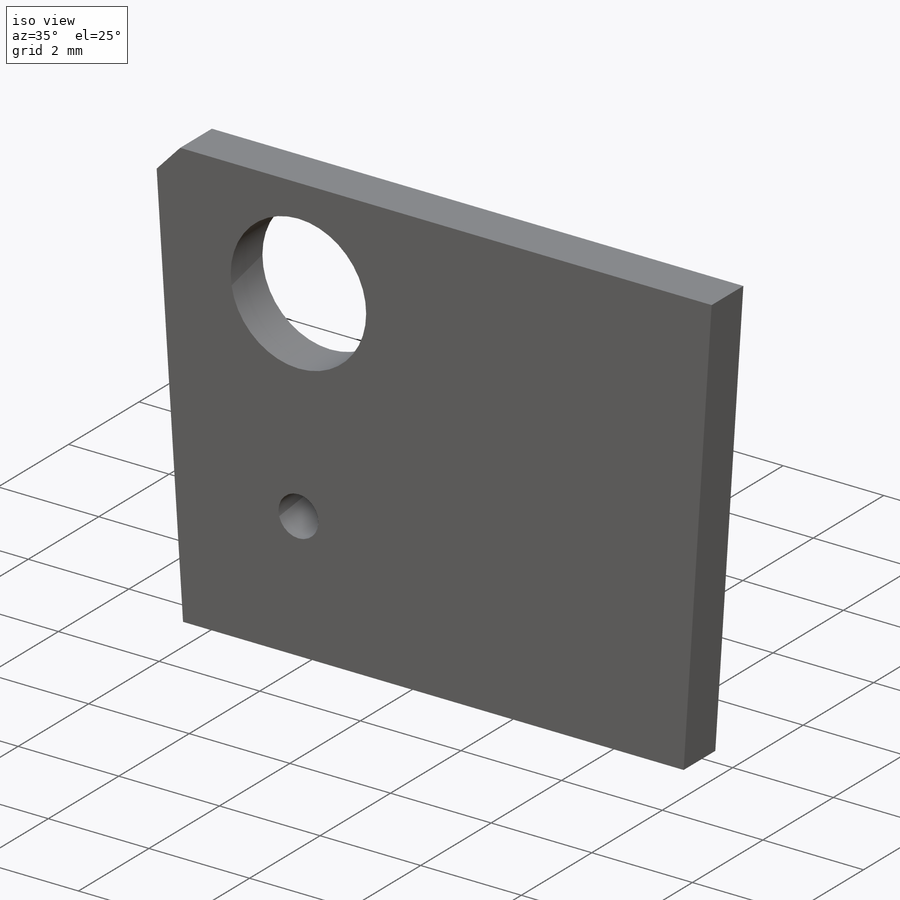
[diagram: iso view]
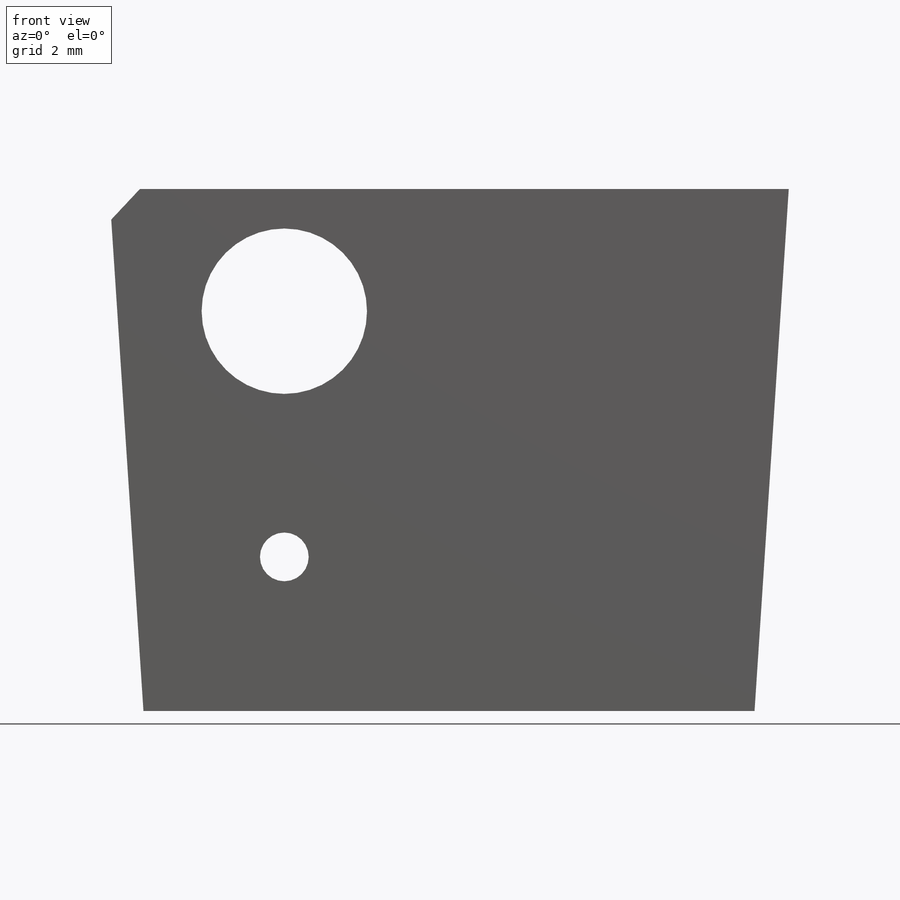
[diagram: front view]
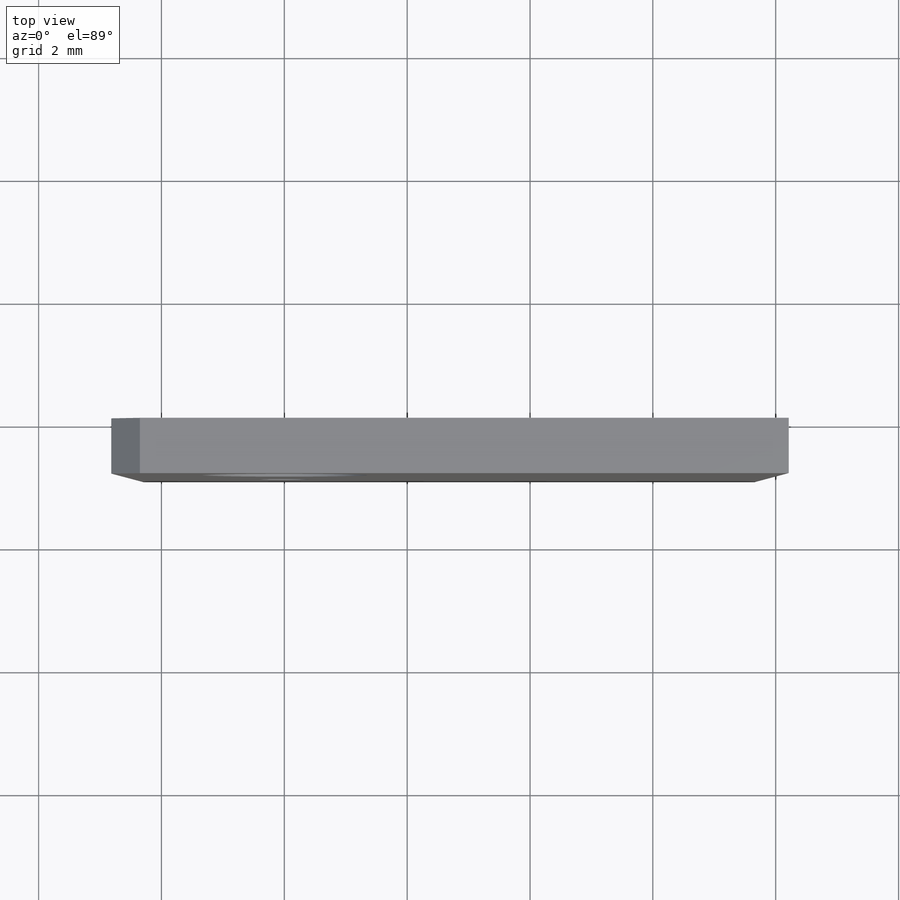
[diagram: top view]
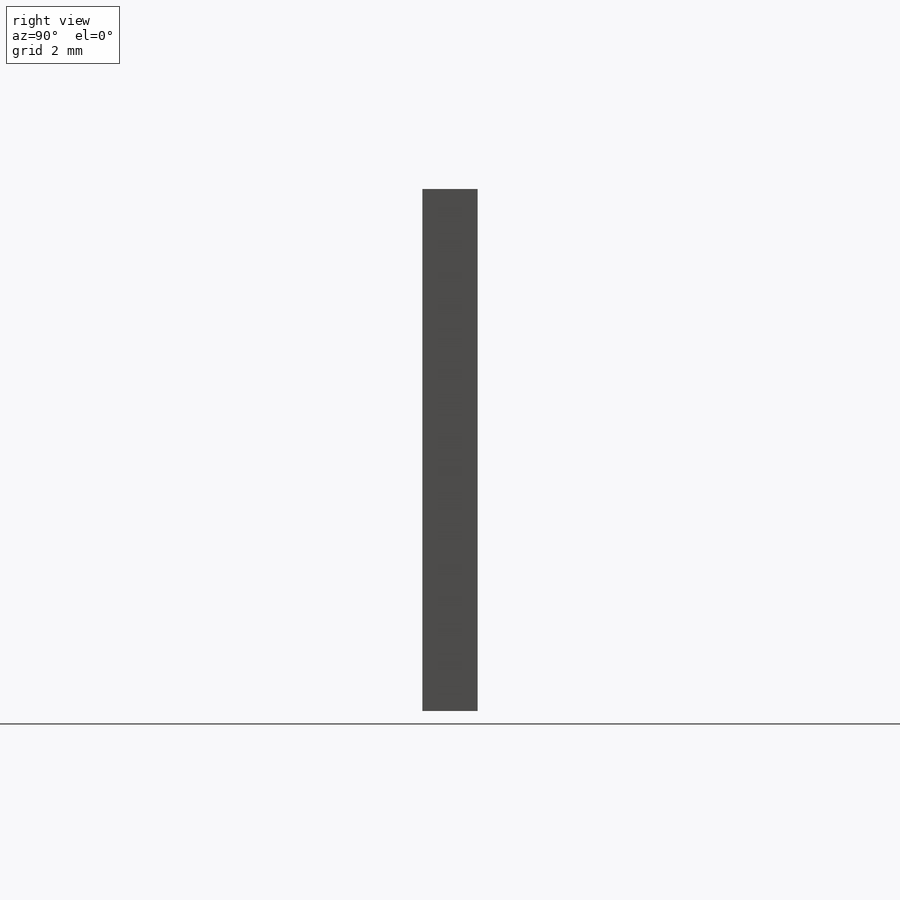
[diagram: right view]
SOLIDWORKS PART (.sldprt)
format: sldprt  version: not decoded by parser v0  size: 897,536 bytes
history: native  units: mm
features: sketch x5, plane x3, cut_extrude x3, extrude x2, chamfer x2, material x1 + 2 further entries (+12 scaffold rows collapsed)
feature tree (30):
  scaffold x12  (default folders/planes/origin — collapsed)
  material  "Material <not specified>"
  plane  "Plane1"
  plane  "Plane2"
  plane  "Plane3"
  "Axis2"
  "Axis3"
  sketch  "Sketch1"  dims[c1.D1=35.0mm c1.D2=~43.543953mm c1.D6=2.6924mm c1.D7=~0.79375mm c1.D5=4.0mm c1.D3=~9.822467mm c2.D3=~17.907866deg c2.D4=~9.822467mm c3.D4=~17.907866deg c4.D4=~29.788439mm c4.D5=~11.148137mm c5.D5=3.75deg c5.D8=37.5mm c5.D9=41.5mm c5.D10=8.5mm c5.D1=0.0mm]
  extrude  "Extrude1"  Depth=4.9mm
  chamfer  "Chamfer1"  Distance=1.3mm Angle=45deg
  sketch  "Sketch2"  dims[c1.D2=~0.79375mm c1.D1=10.0mm c2.D2=35.0mm c2.D3=10.0mm c3.D3=7.5deg c3.D4=~15.311001mm c3.D1=8.5mm]
  extrude  "Extrude2"  Depth=0.9mm
  sketch  "Sketch3"  dims[D1=~0.695477mm D2=~5.214685mm]
  cut_extrude  "Cut-Extrude1"  [1 undecoded]
  sketch  "Sketch4"  dims[c1.D2=~2.293392mm c1.D3=8.5mm c2.D3=3.75deg c2.D1=0.0mm]
  cut_extrude  "Cut-Extrude2"  [1 undecoded]
  sketch  "Sketch5"  dims[D1=0.0mm]
  cut_extrude  "Cut-Extrude3"  [1 undecoded]
  chamfer  "Chamfer2"  Distance=0.5mm
decode coverage: 9 of 12 modeling features carry decoded parameters; 2 rows unclassified (native names shown)
note: ~ marks probable driven/reference dimensions
note: 3 parameter values undecoded
summary: no parameter record found for 3 features
note: suppression state not decoded; provenance and decode notes live in map.json
